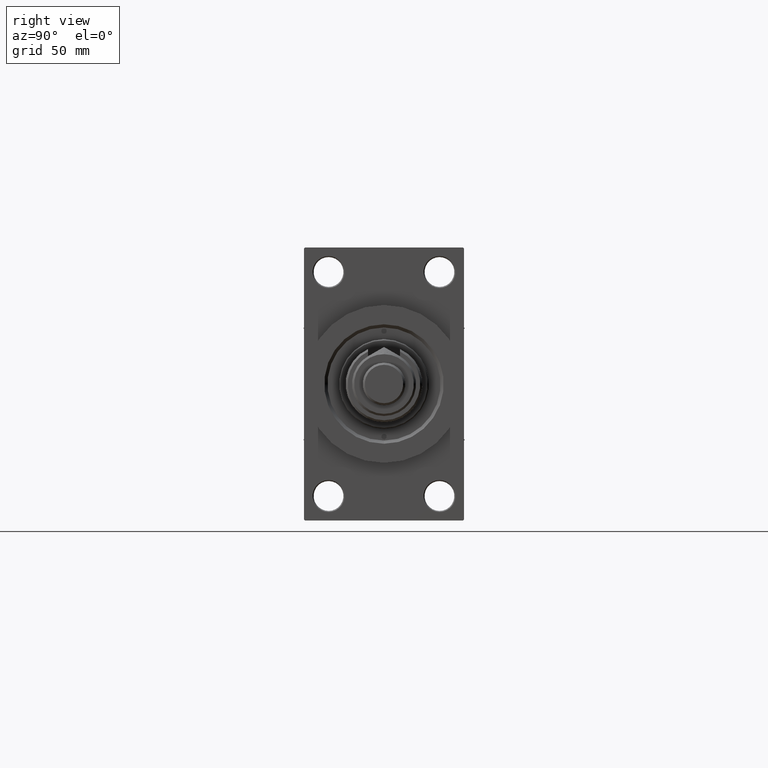
[diagram: clean part render]
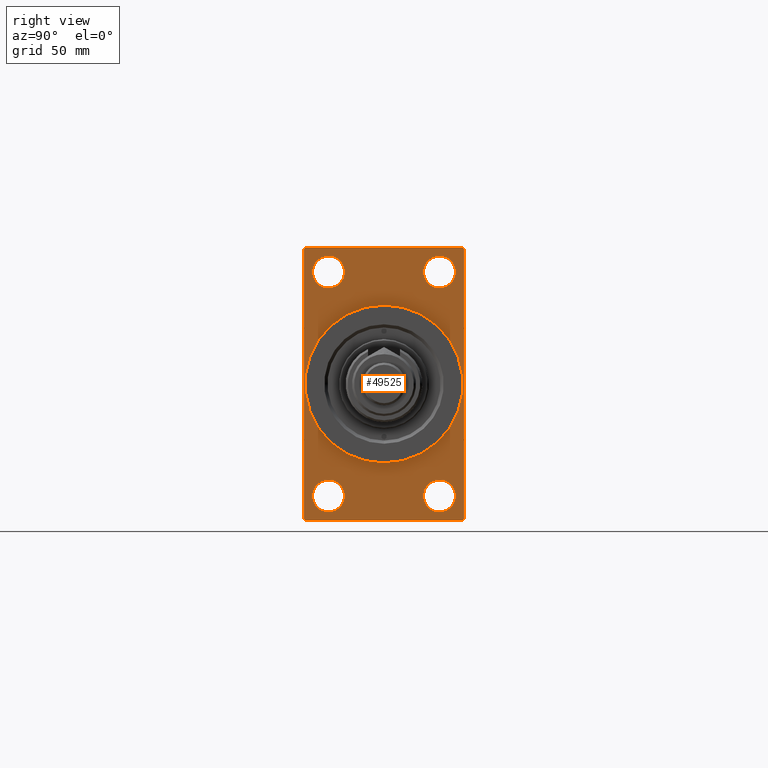
[diagram: same view with one face highlighted and labeled with its STEP entity id]
A machine part, right view. The second image highlights one B-rep face of the part: STEP entity #49525.
In plain terms, the highlighted planar face has unit normal (-1, 0, 0).
Its self-contained STEP definition (entity closure, byte-faithful):
#358 = DIRECTION ( 'NONE',  ( 0.000000000000000000, 0.000000000000000000, 1.000000000000000000 ) ) ;
#624 = CARTESIAN_POINT ( 'NONE',  ( 167.9999999999999716, -37.49999999999999289, 63.99999999999997158 ) ) ;
#971 = DIRECTION ( 'NONE',  ( -1.000000000000000000, 0.000000000000000000, -0.000000000000000000 ) ) ;
#1062 = EDGE_LOOP ( 'NONE', ( #6491, #49755 ) ) ;
#3375 = ORIENTED_EDGE ( 'NONE', *, *, #12091, .F. ) ;
#3730 = VECTOR ( 'NONE', #8476, 1000.000000000000000 ) ;
#4036 = EDGE_CURVE ( 'NONE', #44039, #22215, #5318, .T. ) ;
#5243 = EDGE_CURVE ( 'NONE', #29473, #22091, #15925, .T. ) ;
#5255 = VECTOR ( 'NONE', #9347, 1000.000000000000114 ) ;
#5318 = CIRCLE ( 'NONE', #11836, 7.500000000000007105 ) ;
#5515 = VERTEX_POINT ( 'NONE', #23637 ) ;
#6007 = CARTESIAN_POINT ( 'NONE',  ( 167.9999999999999716, -25.99999999999999645, 44.99999999999999289 ) ) ;
#6136 = AXIS2_PLACEMENT_3D ( 'NONE', #27785, #16104, #15612 ) ;
#6209 = EDGE_CURVE ( 'NONE', #35505, #25010, #10961, .T. ) ;
#6292 = DIRECTION ( 'NONE',  ( -0.000000000000000000, -0.7071067811865524577, -0.7071067811865426878 ) ) ;
#6491 = ORIENTED_EDGE ( 'NONE', *, *, #30422, .F. ) ;
#7056 = FACE_BOUND ( 'NONE', #34320, .T. ) ;
#7297 = DIRECTION ( 'NONE',  ( -0.000000000000000000, 0.000000000000000000, 1.000000000000000000 ) ) ;
#7602 = CARTESIAN_POINT ( 'NONE',  ( 167.9999999999999716, 4.531193156845206793E-15, -37.00000000000000000 ) ) ;
#8340 = LINE ( 'NONE', #11923, #19310 ) ;
#8476 = DIRECTION ( 'NONE',  ( 0.000000000000000000, 0.000000000000000000, -1.000000000000000000 ) ) ;
#8557 = ORIENTED_EDGE ( 'NONE', *, *, #30618, .T. ) ;
#9029 = DIRECTION ( 'NONE',  ( -1.000000000000000000, 0.000000000000000000, -0.000000000000000000 ) ) ;
#9047 = ORIENTED_EDGE ( 'NONE', *, *, #30413, .T. ) ;
#9347 = DIRECTION ( 'NONE',  ( -0.000000000000000000, 0.7071067811865376918, 0.7071067811865573427 ) ) ;
#9578 = CARTESIAN_POINT ( 'NONE',  ( 167.9999999999999716, 26.00000000000000000, -60.00000000000000000 ) ) ;
#9986 = CARTESIAN_POINT ( 'NONE',  ( 167.9999999999999716, -25.99999999999999645, -60.00000000000000000 ) ) ;
#10255 = DIRECTION ( 'NONE',  ( -1.000000000000000000, 0.000000000000000000, -0.000000000000000000 ) ) ;
#10961 = CIRCLE ( 'NONE', #39340, 7.500000000000007105 ) ;
#11055 = ORIENTED_EDGE ( 'NONE', *, *, #11542, .T. ) ;
#11360 = PLANE ( 'NONE',  #13319 ) ;
#11542 = EDGE_CURVE ( 'NONE', #22215, #44039, #42013, .T. ) ;
#11728 = DIRECTION ( 'NONE',  ( 0.000000000000000000, -1.000000000000000000, -1.850371707708594563E-16 ) ) ;
#11793 = CARTESIAN_POINT ( 'NONE',  ( 167.9999999999999716, 26.00000000000000000, -52.49999999999999289 ) ) ;
#11836 = AXIS2_PLACEMENT_3D ( 'NONE', #26251, #10255, #25753 ) ;
#11923 = CARTESIAN_POINT ( 'NONE',  ( 167.9999999999999716, 37.50000000000000000, 63.99999999999998579 ) ) ;
#12091 = EDGE_CURVE ( 'NONE', #48638, #36525, #8340, .T. ) ;
#12400 = DIRECTION ( 'NONE',  ( 0.000000000000000000, -5.421010862427522170E-17, -1.000000000000000000 ) ) ;
#13319 = AXIS2_PLACEMENT_3D ( 'NONE', #18507, #17982, #7297 ) ;
#13782 = DIRECTION ( 'NONE',  ( 0.000000000000000000, -1.000000000000000000, -1.850371707708594563E-16 ) ) ;
#13837 = VERTEX_POINT ( 'NONE', #33125 ) ;
#14056 = LINE ( 'NONE', #43779, #19919 ) ;
#14439 = CARTESIAN_POINT ( 'NONE',  ( 167.9999999999999716, -25.99999999999999645, -52.49999999999999289 ) ) ;
#14667 = FACE_OUTER_BOUND ( 'NONE', #31222, .T. ) ;
#15573 = DIRECTION ( 'NONE',  ( 0.000000000000000000, 0.000000000000000000, 1.000000000000000000 ) ) ;
#15612 = DIRECTION ( 'NONE',  ( 0.000000000000000000, 0.000000000000000000, -1.000000000000000000 ) ) ;
#15925 = CIRCLE ( 'NONE', #29718, 7.500000000000007105 ) ;
#16104 = DIRECTION ( 'NONE',  ( 1.000000000000000000, 0.000000000000000000, 0.000000000000000000 ) ) ;
#16143 = CARTESIAN_POINT ( 'NONE',  ( 167.9999999999999716, 26.00000000000000000, 44.99999999999998579 ) ) ;
#16409 = CARTESIAN_POINT ( 'NONE',  ( 167.9999999999999716, -25.99999999999999645, 52.50000000000000000 ) ) ;
#16715 = DIRECTION ( 'NONE',  ( 0.000000000000000000, 0.000000000000000000, 1.000000000000000000 ) ) ;
#16953 = ORIENTED_EDGE ( 'NONE', *, *, #4036, .T. ) ;
#17278 = CARTESIAN_POINT ( 'NONE',  ( 167.9999999999999716, 0.000000000000000000, 0.000000000000000000 ) ) ;
#17318 = EDGE_CURVE ( 'NONE', #25010, #35505, #42250, .T. ) ;
#17430 = ORIENTED_EDGE ( 'NONE', *, *, #17318, .T. ) ;
#17497 = VERTEX_POINT ( 'NONE', #23007 ) ;
#17813 = VERTEX_POINT ( 'NONE', #9986 ) ;
#17982 = DIRECTION ( 'NONE',  ( -1.000000000000000000, 0.000000000000000000, -0.000000000000000000 ) ) ;
#18237 = FACE_BOUND ( 'NONE', #1062, .T. ) ;
#18507 = CARTESIAN_POINT ( 'NONE',  ( 167.9999999999999716, 0.000000000000000000, 0.000000000000000000 ) ) ;
#18576 = CARTESIAN_POINT ( 'NONE',  ( 167.9999999999999716, 37.50000000000000000, 63.49999999999998579 ) ) ;
#18745 = CARTESIAN_POINT ( 'NONE',  ( 167.9999999999999716, -25.99999999999999645, -52.49999999999999289 ) ) ;
#18825 = EDGE_LOOP ( 'NONE', ( #35441, #46164 ) ) ;
#18999 = FACE_BOUND ( 'NONE', #18825, .T. ) ;
#19310 = VECTOR ( 'NONE', #12400, 1000.000000000000000 ) ;
#19919 = VECTOR ( 'NONE', #24465, 1000.000000000000000 ) ;
#20642 = AXIS2_PLACEMENT_3D ( 'NONE', #17278, #32778, #41412 ) ;
#21362 = CARTESIAN_POINT ( 'NONE',  ( 167.9999999999999716, 26.00000000000000000, 60.00000000000000000 ) ) ;
#21411 = LINE ( 'NONE', #48084, #31051 ) ;
#21461 = CIRCLE ( 'NONE', #34446, 7.500000000000007105 ) ;
#22037 = CARTESIAN_POINT ( 'NONE',  ( 167.9999999999999716, -25.99999999999999645, 60.00000000000000711 ) ) ;
#22091 = VERTEX_POINT ( 'NONE', #16143 ) ;
#22215 = VERTEX_POINT ( 'NONE', #49472 ) ;
#22925 = LINE ( 'NONE', #49864, #48333 ) ;
#23007 = CARTESIAN_POINT ( 'NONE',  ( 167.9999999999999716, -37.00000000000001421, 63.99999999999997158 ) ) ;
#23170 = VECTOR ( 'NONE', #38242, 1000.000000000000114 ) ;
#23637 = CARTESIAN_POINT ( 'NONE',  ( 167.9999999999999716, -36.99999999999999289, -64.00000000000001421 ) ) ;
#23853 = VERTEX_POINT ( 'NONE', #24899 ) ;
#24465 = DIRECTION ( 'NONE',  ( 0.000000000000000000, 0.7071067811865573427, -0.7071067811865378028 ) ) ;
#24697 = ORIENTED_EDGE ( 'NONE', *, *, #27158, .T. ) ;
#24750 = ORIENTED_EDGE ( 'NONE', *, *, #42654, .F. ) ;
#24768 = CARTESIAN_POINT ( 'NONE',  ( 167.9999999999999716, 0.000000000000000000, 37.00000000000000000 ) ) ;
#24814 = EDGE_CURVE ( 'NONE', #28610, #29169, #47408, .T. ) ;
#24899 = CARTESIAN_POINT ( 'NONE',  ( 167.9999999999999716, -37.49999999999999289, -63.50000000000002842 ) ) ;
#25010 = VERTEX_POINT ( 'NONE', #6007 ) ;
#25753 = DIRECTION ( 'NONE',  ( 0.000000000000000000, 0.000000000000000000, 1.000000000000000000 ) ) ;
#25769 = ORIENTED_EDGE ( 'NONE', *, *, #28201, .T. ) ;
#26251 = CARTESIAN_POINT ( 'NONE',  ( 167.9999999999999716, 26.00000000000000000, -52.49999999999999289 ) ) ;
#26356 = FACE_BOUND ( 'NONE', #41455, .T. ) ;
#26681 = EDGE_CURVE ( 'NONE', #29387, #17813, #35293, .T. ) ;
#27158 = EDGE_CURVE ( 'NONE', #48638, #47071, #49699, .T. ) ;
#27527 = DIRECTION ( 'NONE',  ( -1.000000000000000000, 0.000000000000000000, -0.000000000000000000 ) ) ;
#27785 = CARTESIAN_POINT ( 'NONE',  ( 167.9999999999999716, 0.000000000000000000, 0.000000000000000000 ) ) ;
#28027 = CARTESIAN_POINT ( 'NONE',  ( 167.9999999999999716, 37.00000000000000000, 63.99999999999998579 ) ) ;
#28105 = DIRECTION ( 'NONE',  ( -1.000000000000000000, 0.000000000000000000, -0.000000000000000000 ) ) ;
#28201 = EDGE_CURVE ( 'NONE', #47071, #17497, #22925, .T. ) ;
#28610 = VERTEX_POINT ( 'NONE', #7602 ) ;
#28791 = EDGE_CURVE ( 'NONE', #17497, #13837, #47961, .T. ) ;
#29169 = VERTEX_POINT ( 'NONE', #24768 ) ;
#29301 = AXIS2_PLACEMENT_3D ( 'NONE', #36276, #971, #16715 ) ;
#29387 = VERTEX_POINT ( 'NONE', #38734 ) ;
#29473 = VERTEX_POINT ( 'NONE', #21362 ) ;
#29718 = AXIS2_PLACEMENT_3D ( 'NONE', #49910, #34645, #15573 ) ;
#29920 = EDGE_CURVE ( 'NONE', #50256, #36525, #44664, .T. ) ;
#30379 = CARTESIAN_POINT ( 'NONE',  ( 167.9999999999999716, 37.00000000000000000, 63.99999999999998579 ) ) ;
#30413 = EDGE_CURVE ( 'NONE', #13837, #23853, #31608, .T. ) ;
#30422 = EDGE_CURVE ( 'NONE', #29169, #28610, #32902, .T. ) ;
#30618 = EDGE_CURVE ( 'NONE', #23853, #5515, #14056, .T. ) ;
#30686 = FACE_BOUND ( 'NONE', #35590, .T. ) ;
#31051 = VECTOR ( 'NONE', #13782, 1000.000000000000000 ) ;
#31059 = CARTESIAN_POINT ( 'NONE',  ( 167.9999999999999716, 37.00000000000002132, -64.00000000000000000 ) ) ;
#31222 = EDGE_LOOP ( 'NONE', ( #9047, #8557, #24750, #49466, #3375, #24697, #25769, #39942 ) ) ;
#31451 = AXIS2_PLACEMENT_3D ( 'NONE', #11793, #27527, #358 ) ;
#31608 = LINE ( 'NONE', #624, #3730 ) ;
#32778 = DIRECTION ( 'NONE',  ( 1.000000000000000000, 0.000000000000000000, 0.000000000000000000 ) ) ;
#32868 = AXIS2_PLACEMENT_3D ( 'NONE', #14439, #41880, #42378 ) ;
#32902 = CIRCLE ( 'NONE', #6136, 37.00000000000000000 ) ;
#33125 = CARTESIAN_POINT ( 'NONE',  ( 167.9999999999999716, -37.49999999999999289, 63.50000000000000000 ) ) ;
#33436 = ORIENTED_EDGE ( 'NONE', *, *, #49537, .T. ) ;
#34226 = DIRECTION ( 'NONE',  ( 0.000000000000000000, 0.000000000000000000, 1.000000000000000000 ) ) ;
#34320 = EDGE_LOOP ( 'NONE', ( #33436, #39279 ) ) ;
#34446 = AXIS2_PLACEMENT_3D ( 'NONE', #18745, #48986, #34226 ) ;
#34473 = VECTOR ( 'NONE', #6292, 1000.000000000000000 ) ;
#34557 = CARTESIAN_POINT ( 'NONE',  ( 167.9999999999999716, -25.99999999999999645, 52.50000000000000000 ) ) ;
#34645 = DIRECTION ( 'NONE',  ( -1.000000000000000000, 0.000000000000000000, -0.000000000000000000 ) ) ;
#35226 = DIRECTION ( 'NONE',  ( 0.000000000000000000, 0.000000000000000000, 1.000000000000000000 ) ) ;
#35293 = CIRCLE ( 'NONE', #32868, 7.500000000000007105 ) ;
#35441 = ORIENTED_EDGE ( 'NONE', *, *, #39655, .T. ) ;
#35505 = VERTEX_POINT ( 'NONE', #22037 ) ;
#35590 = EDGE_LOOP ( 'NONE', ( #16953, #11055 ) ) ;
#35698 = CARTESIAN_POINT ( 'NONE',  ( 167.9999999999999716, 37.49999999999999289, -63.50000000000001421 ) ) ;
#36276 = CARTESIAN_POINT ( 'NONE',  ( 167.9999999999999716, 26.00000000000000000, 52.49999999999999289 ) ) ;
#36525 = VERTEX_POINT ( 'NONE', #35698 ) ;
#37050 = CARTESIAN_POINT ( 'NONE',  ( 167.9999999999999716, 37.49999999999999289, -63.50000000000001421 ) ) ;
#37428 = CIRCLE ( 'NONE', #29301, 7.500000000000007105 ) ;
#38242 = DIRECTION ( 'NONE',  ( 0.000000000000000000, -0.7071067811865474617, 0.7071067811865474617 ) ) ;
#38616 = DIRECTION ( 'NONE',  ( 0.000000000000000000, 0.000000000000000000, 1.000000000000000000 ) ) ;
#38734 = CARTESIAN_POINT ( 'NONE',  ( 167.9999999999999716, -25.99999999999999645, -44.99999999999998579 ) ) ;
#39279 = ORIENTED_EDGE ( 'NONE', *, *, #26681, .T. ) ;
#39340 = AXIS2_PLACEMENT_3D ( 'NONE', #16409, #28105, #35226 ) ;
#39655 = EDGE_CURVE ( 'NONE', #22091, #29473, #37428, .T. ) ;
#39942 = ORIENTED_EDGE ( 'NONE', *, *, #28791, .T. ) ;
#40001 = ORIENTED_EDGE ( 'NONE', *, *, #6209, .T. ) ;
#41412 = DIRECTION ( 'NONE',  ( 0.000000000000000000, 0.000000000000000000, -1.000000000000000000 ) ) ;
#41455 = EDGE_LOOP ( 'NONE', ( #17430, #40001 ) ) ;
#41880 = DIRECTION ( 'NONE',  ( -1.000000000000000000, 0.000000000000000000, -0.000000000000000000 ) ) ;
#42013 = CIRCLE ( 'NONE', #31451, 7.500000000000007105 ) ;
#42250 = CIRCLE ( 'NONE', #45520, 7.500000000000007105 ) ;
#42378 = DIRECTION ( 'NONE',  ( 0.000000000000000000, 0.000000000000000000, 1.000000000000000000 ) ) ;
#42654 = EDGE_CURVE ( 'NONE', #50256, #5515, #21411, .T. ) ;
#43779 = CARTESIAN_POINT ( 'NONE',  ( 167.9999999999999716, -36.99999999999999289, -64.00000000000001421 ) ) ;
#44039 = VERTEX_POINT ( 'NONE', #9578 ) ;
#44658 = CARTESIAN_POINT ( 'NONE',  ( 167.9999999999999716, -37.49999999999999289, 63.50000000000000000 ) ) ;
#44664 = LINE ( 'NONE', #37050, #5255 ) ;
#45520 = AXIS2_PLACEMENT_3D ( 'NONE', #34557, #9029, #38616 ) ;
#46164 = ORIENTED_EDGE ( 'NONE', *, *, #5243, .T. ) ;
#47071 = VERTEX_POINT ( 'NONE', #28027 ) ;
#47408 = CIRCLE ( 'NONE', #20642, 37.00000000000000000 ) ;
#47961 = LINE ( 'NONE', #44658, #34473 ) ;
#48084 = CARTESIAN_POINT ( 'NONE',  ( 167.9999999999999716, 37.49999999999999289, -64.00000000000000000 ) ) ;
#48333 = VECTOR ( 'NONE', #11728, 1000.000000000000000 ) ;
#48638 = VERTEX_POINT ( 'NONE', #18576 ) ;
#48986 = DIRECTION ( 'NONE',  ( -1.000000000000000000, 0.000000000000000000, -0.000000000000000000 ) ) ;
#49466 = ORIENTED_EDGE ( 'NONE', *, *, #29920, .T. ) ;
#49472 = CARTESIAN_POINT ( 'NONE',  ( 167.9999999999999716, 26.00000000000000000, -44.99999999999998579 ) ) ;
#49525 = ADVANCED_FACE ( 'NONE', ( #26356, #7056, #30686, #18999, #18237, #14667 ), #11360, .F. ) ;
#49537 = EDGE_CURVE ( 'NONE', #17813, #29387, #21461, .T. ) ;
#49699 = LINE ( 'NONE', #30379, #23170 ) ;
#49755 = ORIENTED_EDGE ( 'NONE', *, *, #24814, .F. ) ;
#49864 = CARTESIAN_POINT ( 'NONE',  ( 167.9999999999999716, 37.50000000000000000, 63.99999999999998579 ) ) ;
#49910 = CARTESIAN_POINT ( 'NONE',  ( 167.9999999999999716, 26.00000000000000000, 52.49999999999999289 ) ) ;
#50256 = VERTEX_POINT ( 'NONE', #31059 ) ;